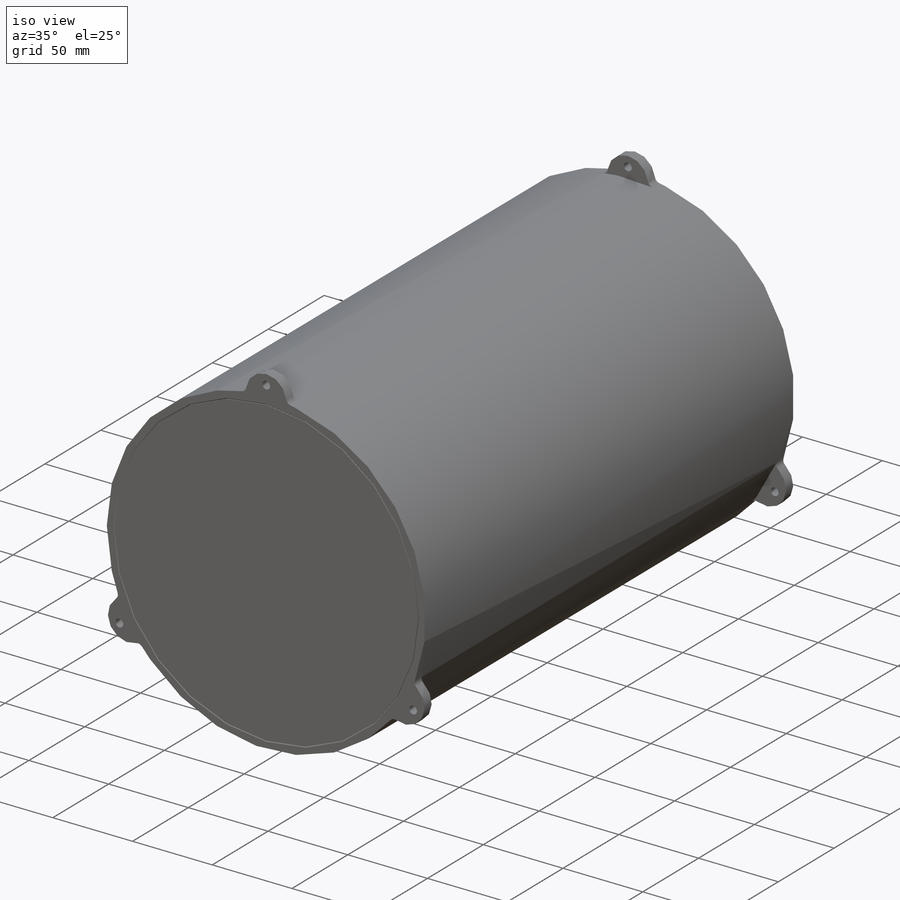
[diagram: iso view]
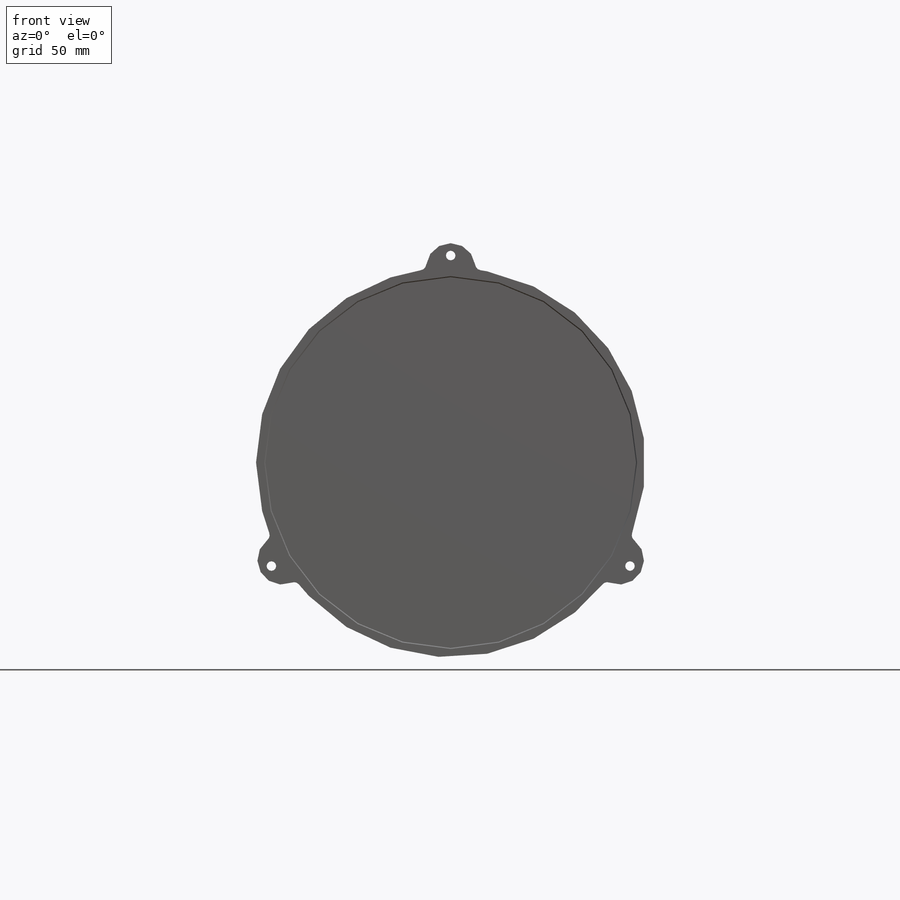
[diagram: front view]
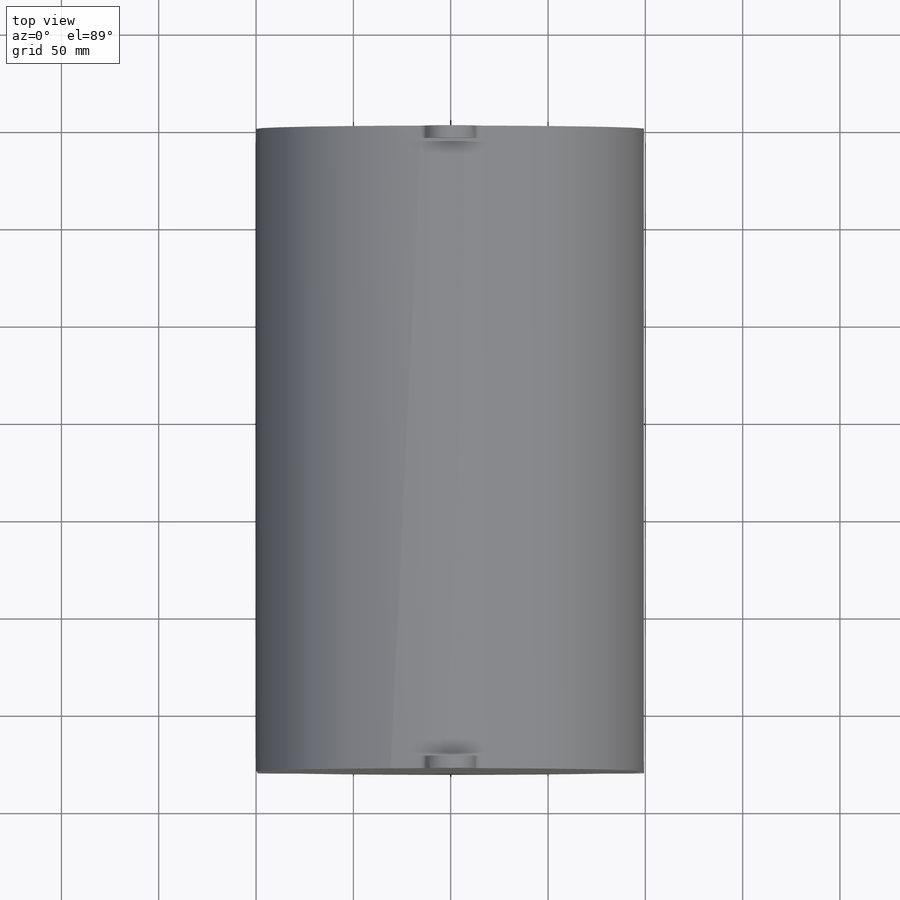
[diagram: top view]
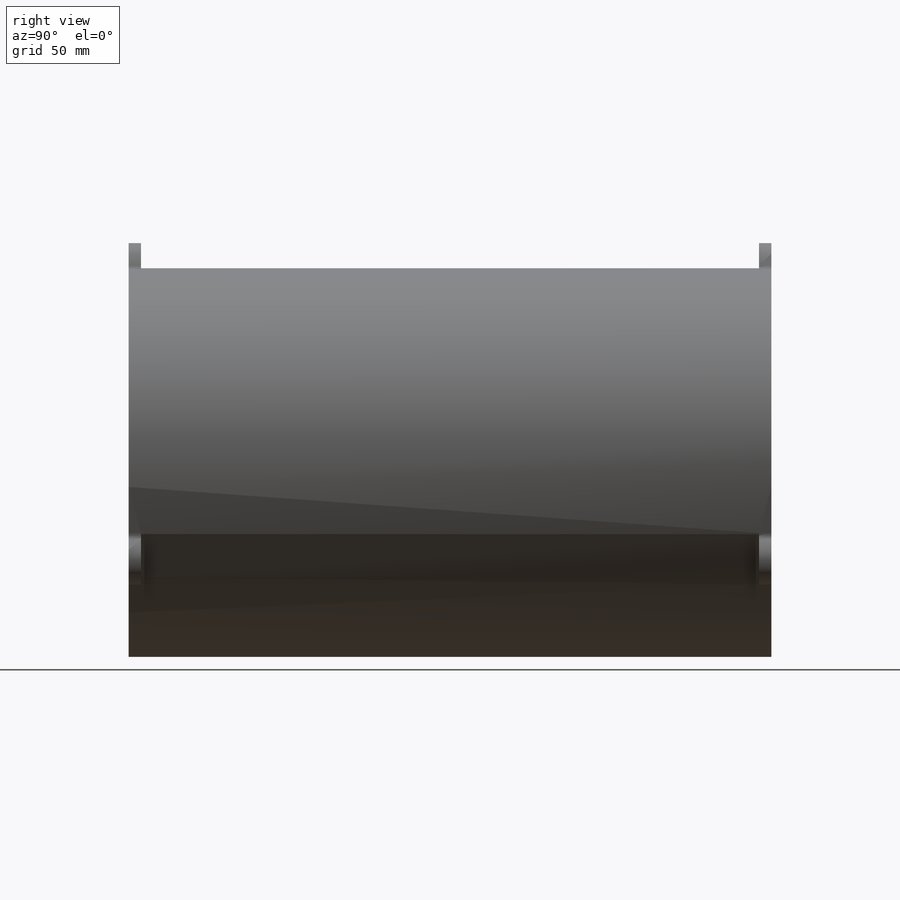
[diagram: right view]
SOLIDWORKS PART (.sldprt)
format: sldprt  version: not decoded by parser v0  size: 352,256 bytes
history: native  units: mm
features: sketch x7, extrude x4, material x1, hole x1, chamfer x1, fillet x1 (+11 scaffold rows collapsed)
feature tree (26):
  scaffold x11  (default folders/planes/origin — collapsed)
  material  "6061-T6 (SS)"
  sketch  "Sketch1"  dims[D1=4.7625mm]
  extrude  "Extrude1"  Depth=330.2mm
  sketch  "Sketch2"  dims[c1.D1=12.7mm c1.D2=12.7mm c1.D3=12.7mm c2.D1=150.0deg c3.D1=98.425mm c4.D1=~11.493923deg]
  extrude  "Extrude2"  Depth=6.35mm
  sketch  "Sketch3"  dims[c1.D1=12.7mm c1.D2=12.7mm c1.D3=12.7mm c2.D1=150.0deg c3.D1=~128.899085mm c4.D1=~15.506628deg]
  extrude  "Extrude4"  Depth=6.35mm
  hole  "#10 (0.1935) Diameter Hole1"  Diameter=4.9149mm Depth=330.2mm
  sketch  "3DSketch2"  dims[c1.D1=~99.384884mm c1.D2=104.1273mm c2.D2=~57.742574mm c2.D4=104.1273mm c2.D3=~99.109799mm c2.D1=104.1273mm c3.D1=~165.602429mm c4.D1=120.0deg c4.D2=~141.306698mm c5.D2=120.0deg c5.D3=152.4mm c5.D4=152.4mm c5.D5=152.4mm c5.D6=~330.225637mm c5.D9=~330.225637mm c5.D7=106.3625mm c5.D8=106.3625mm c6.D9=104.1273mm c6.D10=104.1273mm c6.D6=106.3625mm]
  sketch  "Sketch5"  dims[hole-wizard template sketch: 60 standard entries collapsed; hole parameters kept: c18.Thru Hole Depth=330.2mm]
  chamfer  "Chamfer1"  Distance=0.508mm Angle=45deg
  fillet  "Fillet1"  Radius=3.175mm
  sketch  "Sketch6"
  extrude  "Boss-Extrude1"  [1 undecoded]
  sketch  "Sketch1<3>"  dims[D1=330.2mm]
decode coverage: 12 of 14 modeling features carry decoded parameters
note: ~ marks probable driven/reference dimensions
note: 1 parameter value undecoded
note: suppression state not decoded; provenance and decode notes live in map.json
